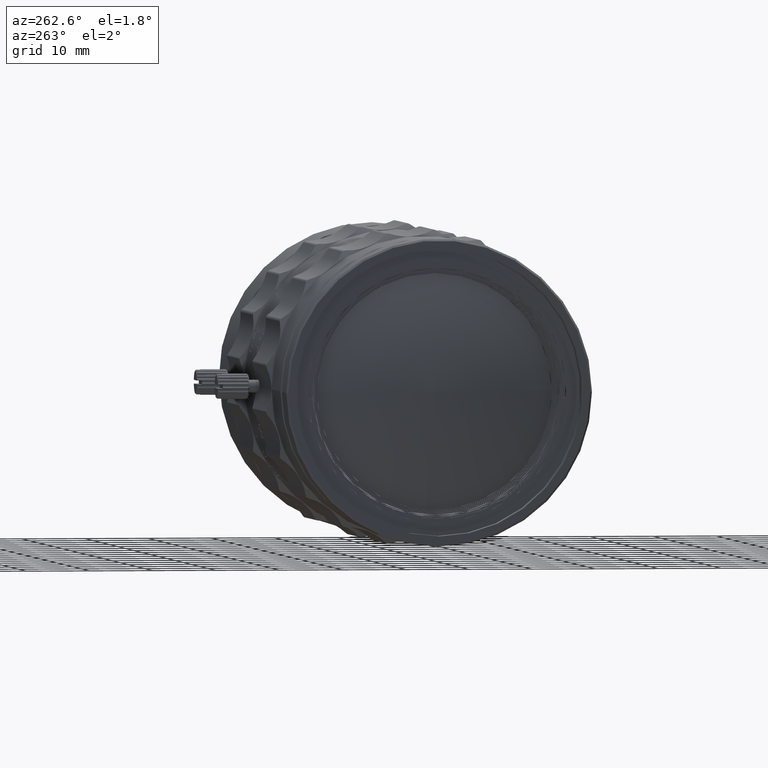
[diagram: clean part render]
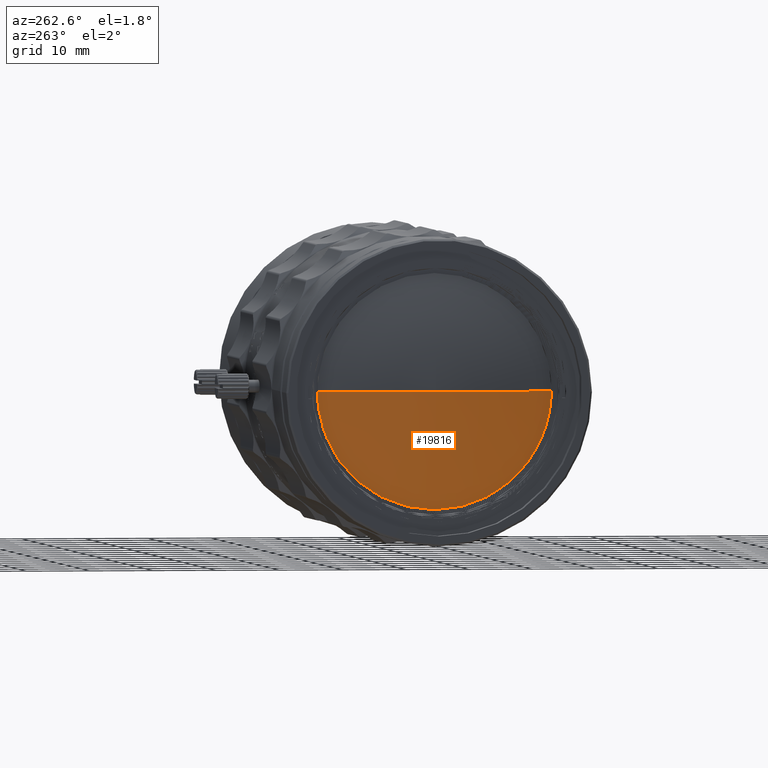
[diagram: same view with one face highlighted and labeled with its STEP entity id]
A machine part, auxiliary view. The second image highlights one B-rep face of the part: STEP entity #19816.
In plain terms, the highlighted spherical surface has radius 63.395 mm.
Its self-contained STEP definition (entity closure, byte-faithful):
#2831 = EDGE_CURVE ( 'NONE', #78948, #66721, #71144, .T. ) ;
#4356 = CARTESIAN_POINT ( 'NONE',  ( 1.860000000000000098, 18.59999999999999787, -4.035510154005925555E-15 ) ) ;
#4987 = AXIS2_PLACEMENT_3D ( 'NONE', #25738, #79724, #19130 ) ;
#6620 = CARTESIAN_POINT ( 'NONE',  ( 1.860000000000000098, 2.277843046414075176E-15, -18.59999999999999787 ) ) ;
#6656 = CARTESIAN_POINT ( 'NONE',  ( 1.860000000000000098, -18.59999999999999787, 2.798018985236299972E-15 ) ) ;
#6881 = DIRECTION ( 'NONE',  ( 8.583053193997789333E-18, 1.224646799147350002E-16, 1.000000000000000000 ) ) ;
#7310 = CARTESIAN_POINT ( 'NONE',  ( 62.46499999999999631, 2.278846133210289421E-15, -1.059321524241170118E-29 ) ) ;
#8926 = DIRECTION ( 'NONE',  ( -1.000000000000000000, 0.000000000000000000, 0.000000000000000000 ) ) ;
#10489 = CIRCLE ( 'NONE', #61384, 63.39500000000001023 ) ;
#17059 = DIRECTION ( 'NONE',  ( 0.000000000000000000, -1.000000000000000000, 0.000000000000000000 ) ) ;
#17890 = ORIENTED_EDGE ( 'NONE', *, *, #20909, .T. ) ;
#19130 = DIRECTION ( 'NONE',  ( 0.000000000000000000, -1.000000000000000000, 1.224646799147350002E-16 ) ) ;
#19816 = ADVANCED_FACE ( 'NONE', ( #60696 ), #59374, .T. ) ;
#20909 = EDGE_CURVE ( 'NONE', #68073, #78948, #47487, .T. ) ;
#22027 = AXIS2_PLACEMENT_3D ( 'NONE', #35904, #8926, #42108 ) ;
#25738 = CARTESIAN_POINT ( 'NONE',  ( 62.46499999999999631, 2.278846133210289421E-15, -1.059321524241170118E-29 ) ) ;
#29206 = EDGE_CURVE ( 'NONE', #68073, #66721, #10489, .T. ) ;
#32959 = AXIS2_PLACEMENT_3D ( 'NONE', #51102, #51537, #17059 ) ;
#35904 = CARTESIAN_POINT ( 'NONE',  ( 1.860000000000000098, 0.000000000000000000, 0.000000000000000000 ) ) ;
#42108 = DIRECTION ( 'NONE',  ( 0.000000000000000000, -1.000000000000000000, 0.000000000000000000 ) ) ;
#47487 = CIRCLE ( 'NONE', #22027, 18.59999999999999787 ) ;
#50560 = ORIENTED_EDGE ( 'NONE', *, *, #2831, .T. ) ;
#51102 = CARTESIAN_POINT ( 'NONE',  ( 1.860000000000000098, 0.000000000000000000, 0.000000000000000000 ) ) ;
#51537 = DIRECTION ( 'NONE',  ( -1.000000000000000000, 0.000000000000000000, 0.000000000000000000 ) ) ;
#59374 = SPHERICAL_SURFACE ( 'NONE', #4987, 63.39500000000001023 ) ;
#60696 = FACE_OUTER_BOUND ( 'NONE', #73157, .T. ) ;
#61384 = AXIS2_PLACEMENT_3D ( 'NONE', #7310, #6881, #74139 ) ;
#66721 = VERTEX_POINT ( 'NONE', #6656 ) ;
#68073 = VERTEX_POINT ( 'NONE', #4356 ) ;
#71144 = CIRCLE ( 'NONE', #32959, 18.59999999999999787 ) ;
#73157 = EDGE_LOOP ( 'NONE', ( #76225, #17890, #50560 ) ) ;
#74139 = DIRECTION ( 'NONE',  ( 0.000000000000000000, -1.000000000000000000, 1.224646799147349756E-16 ) ) ;
#76225 = ORIENTED_EDGE ( 'NONE', *, *, #29206, .F. ) ;
#78948 = VERTEX_POINT ( 'NONE', #6620 ) ;
#79724 = DIRECTION ( 'NONE',  ( -1.000000000000000000, 1.051120862094083162E-33, 8.583053193997789333E-18 ) ) ;